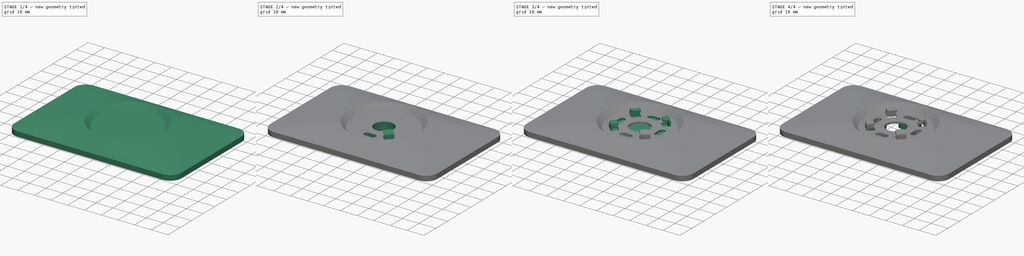
[diagram: build sequence overview — one tinted view per stage of 4, left to right]
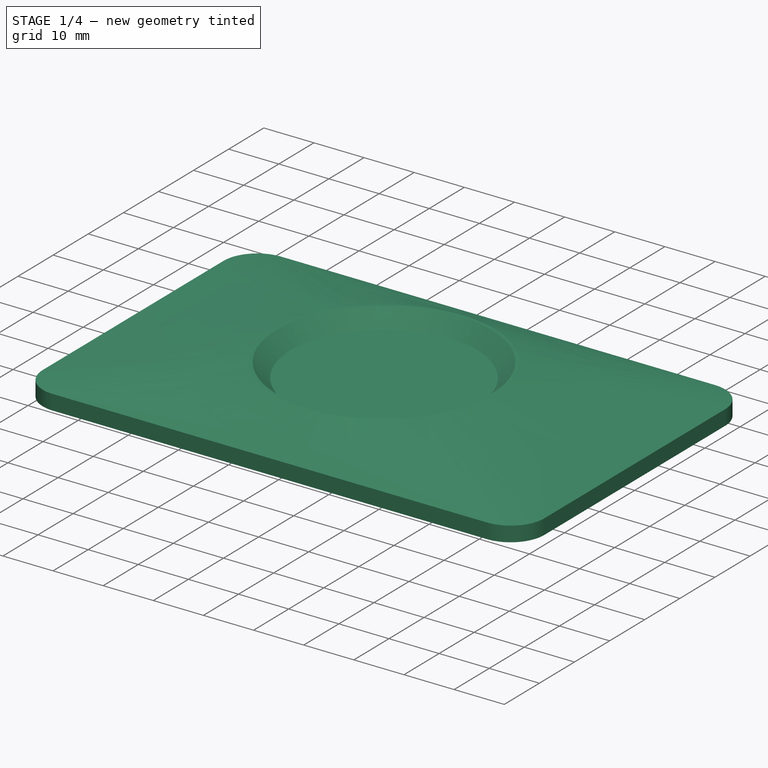
[diagram: stage 1 of 4 — iso view after this stage's code; geometry added in this stage tinted green]
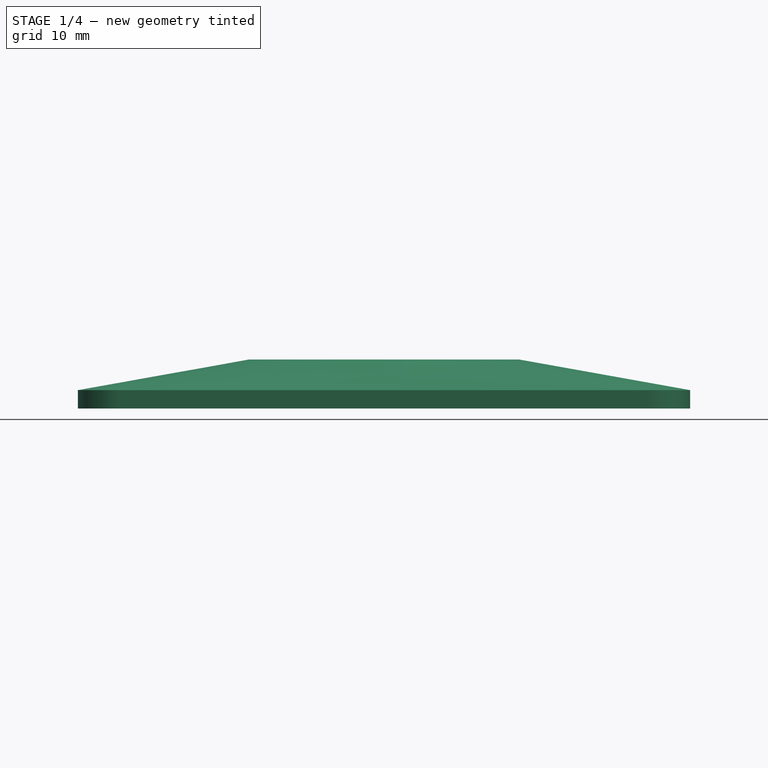
[diagram: stage 1 of 4 — front view after this stage's code; geometry added in this stage tinted green]
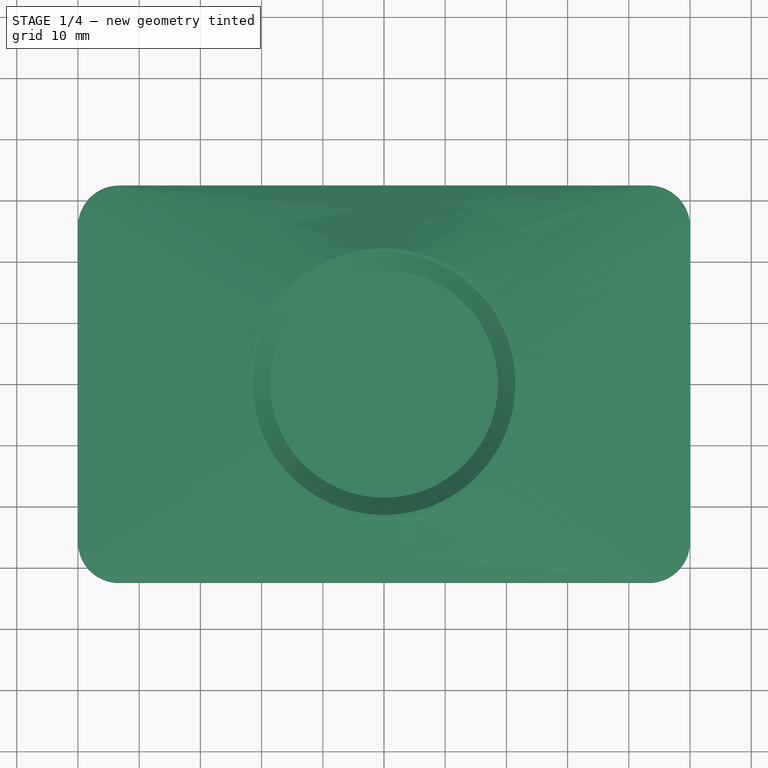
[diagram: stage 1 of 4 — top view after this stage's code; geometry added in this stage tinted green]
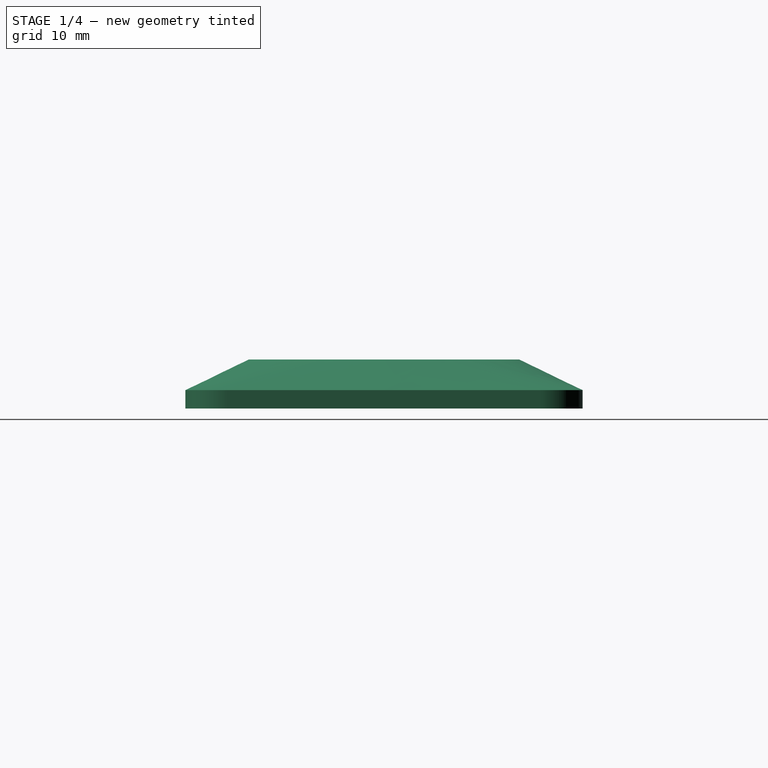
[diagram: stage 1 of 4 — right view after this stage's code; geometry added in this stage tinted green]
FCSTD DOCUMENT  (FreeCAD 1.0R39319 (Git))
Label: test
License: All rights reserved
LicenseURL: https://en.wikipedia.org/wiki/All_rights_reserved
objects: Sketcher::SketchObject×9, PartDesign::Pad×3, PartDesign::AdditiveLoft×2, PartDesign::Groove×2, PartDesign::Pocket×2, PartDesign::PolarPattern×2, PartDesign::Body×2, PartDesign::Fillet×1, PartDesign::Boolean×1
note: 56 computed .brp shape members not serialized (recipe doc carries the construction recipe); baked Part::Feature solids carry a one-line shape summary decoded from their .brp

FEATURE [Sketcher::SketchObject] Sketch
  ArcFitTolerance = 1e-06
  AttachmentSupport = -> [XY_Plane]
  FullyConstrained = false
  MakeInternals = false
  MapMode = 5
  sketch-geometry (12):
    g0: LineSegment StartX=-50.0096 StartY=25.7179 StartZ=0 EndX=-50.0096 EndY=-25.7179 EndZ=0
    g1: LineSegment StartX=-43.2767 StartY=-32.4508 StartZ=0 EndX=43.2767 EndY=-32.4508 EndZ=0
    g2: LineSegment StartX=50.0096 StartY=-25.7179 StartZ=0 EndX=50.0096 EndY=25.7179 EndZ=0
    g3: LineSegment StartX=43.2767 StartY=32.4508 StartZ=0 EndX=-43.2767 EndY=32.4508 EndZ=0
    g4: ArcOfCircle CenterX=-43.2767 CenterY=25.7179 CenterZ=0 NormalX=0 NormalY=0 NormalZ=1 AngleXU=0 Radius=6.73292 StartAngle=1.5708 EndAngle=3.14159
    g5: GeomPoint [constr] X=-50.0096 Y=32.4508 Z=0
    g6: ArcOfCircle CenterX=43.2767 CenterY=25.7179 CenterZ=0 NormalX=0 NormalY=0 NormalZ=1 AngleXU=0 Radius=6.73292 StartAngle=0 EndAngle=1.5708
    g7: GeomPoint [constr] X=50.0096 Y=32.4508 Z=0
    g8: ArcOfCircle CenterX=43.2767 CenterY=-25.7179 CenterZ=0 NormalX=0 NormalY=0 NormalZ=1 AngleXU=0 Radius=6.73292 StartAngle=4.71239 EndAngle=6.28319
    g9: GeomPoint [constr] X=50.0096 Y=-32.4508 Z=0
    g10: ArcOfCircle CenterX=-43.2767 CenterY=-25.7179 CenterZ=0 NormalX=0 NormalY=0 NormalZ=1 AngleXU=0 Radius=6.73292 StartAngle=3.14159 EndAngle=4.71239
    g11: GeomPoint [constr] X=-50.0096 Y=-32.4508 Z=0
  constraints (24):
    c: Vertical(g0)
    c: Vertical(g2)
    c: Horizontal(g1)
    c: Horizontal(g3)
    c: PointOnObject(g5,g3)
    c: PointOnObject(g5,g0)
    c: Tangent(g3,g4) = -1.5708
    c: Tangent(g0,g4) = -1.5708
    c: PointOnObject(g7,g3)
    c: PointOnObject(g7,g2)
    c: Tangent(g3,g6) = -1.5708
    c: Tangent(g2,g6) = -1.5708
    c: PointOnObject(g9,g2)
    c: PointOnObject(g9,g1)
    c: Tangent(g2,g8) = -1.5708
    c: Tangent(g1,g8) = -1.5708
    c: PointOnObject(g11,g1)
    c: PointOnObject(g11,g0)
    c: Tangent(g1,g10) = -1.5708
    c: Tangent(g0,g10) = -1.5708
    c: Equal(g10,g8)
    c: Equal(g8,g6)
    c: Equal(g6,g4)
    c: Symmetric(g8,g4,g-1)
FEATURE [PartDesign::Pad] Pad
  Direction = (0,0,1)
  Length = 3
  Length2 = 10
  Profile = -> Sketch
  ReferenceAxis = -> Sketch [N_Axis]
  Refine = true
  Suppressed = false
  Type = 0
FEATURE [Sketcher::SketchObject] Sketch002
  ArcFitTolerance = 1e-06
  AttachmentOffset = pos=(0,0,8) rot=(0,0,1;0rad)
  AttachmentSupport = -> [XY_Plane]
  FullyConstrained = false
  MakeInternals = false
  MapMode = 5
  Placement = pos=(0,0,8) rot=(0,0,1;0rad)
  sketch-geometry (1):
    g0: Circle CenterX=0 CenterY=0 CenterZ=0 NormalX=0 NormalY=0 NormalZ=1 AngleXU=0 Radius=22.0968
  constraints (1):
    c: Coincident(g0,g-1)
FEATURE [PartDesign::AdditiveLoft] AdditiveLoft
  BaseFeature = -> Pad
  Closed = false
  Profile = -> Pad [Face10]
  Refine = true
  Ruled = false
  Sections = -> [Sketch002]
  Suppressed = false
FEATURE [Sketcher::SketchObject] Sketch005
  ArcFitTolerance = 1e-06
  AttachmentSupport = -> [XZ_Plane]
  FullyConstrained = false
  MakeInternals = false
  MapMode = 5
  Placement = pos=(0,0,0) rot=(1,0,0;1.5708rad)
  sketch-geometry (5):
    g0: LineSegment StartX=0 StartY=9.53049 StartZ=0 EndX=21.7903 EndY=9.53049 EndZ=0
    g1: LineSegment StartX=21.7903 StartY=9.53049 StartZ=0 EndX=21.7903 EndY=8.33566 EndZ=0
    g2: LineSegment StartX=21.7903 StartY=8.33566 StartZ=0 EndX=18.5939 EndY=5.13926 EndZ=0
    g3: LineSegment StartX=18.5939 StartY=5.13926 StartZ=0 EndX=0 EndY=5.13926 EndZ=0
    g4: LineSegment StartX=0 StartY=5.13926 StartZ=0 EndX=0 EndY=9.53049 EndZ=0
  constraints (11):
    c: PointOnObject(g0,g-2)
    c: Horizontal(g0)
    c: Coincident(g0,g1)
    c: Vertical(g1)
    c: Coincident(g1,g2)
    c: Coincident(g2,g3)
    c: PointOnObject(g3,g-2)
    c: Horizontal(g3)
    c: Coincident(g3,g4)
    c: Coincident(g4,g0)
    c: Angle(g0,g2) = 0.785398
FEATURE [PartDesign::Groove] Groove001
  Angle = 360
  Angle2 = 60
  Axis = (0,2e-16,1)
  Base = (0,0,0)
  BaseFeature = -> AdditiveLoft
  Profile = -> Sketch005
  ReferenceAxis = -> Sketch005 [V_Axis]
  Refine = true
  Suppressed = false
  Type = 0
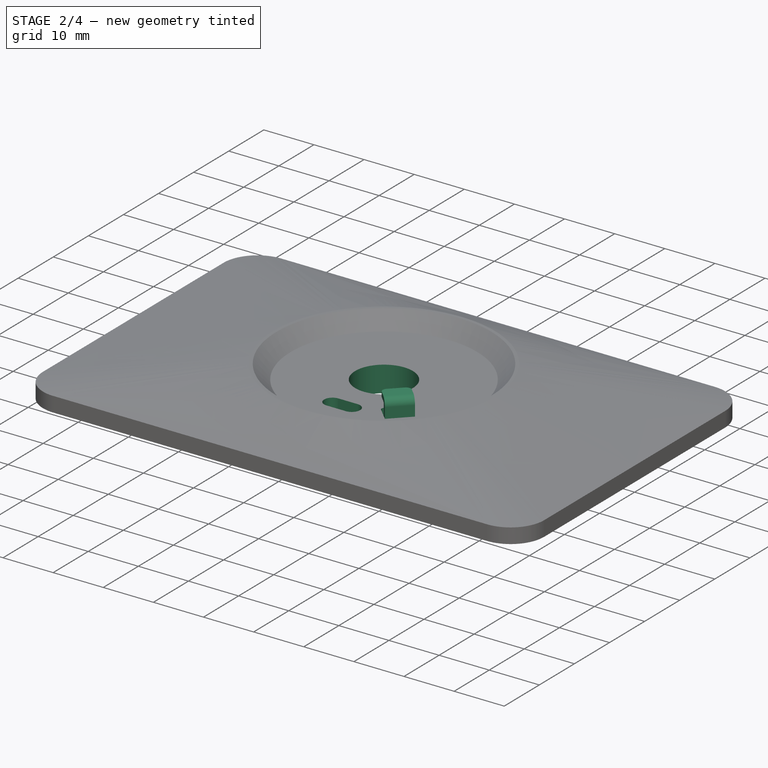
[diagram: stage 2 of 4 — iso view after this stage's code; geometry added in this stage tinted green]
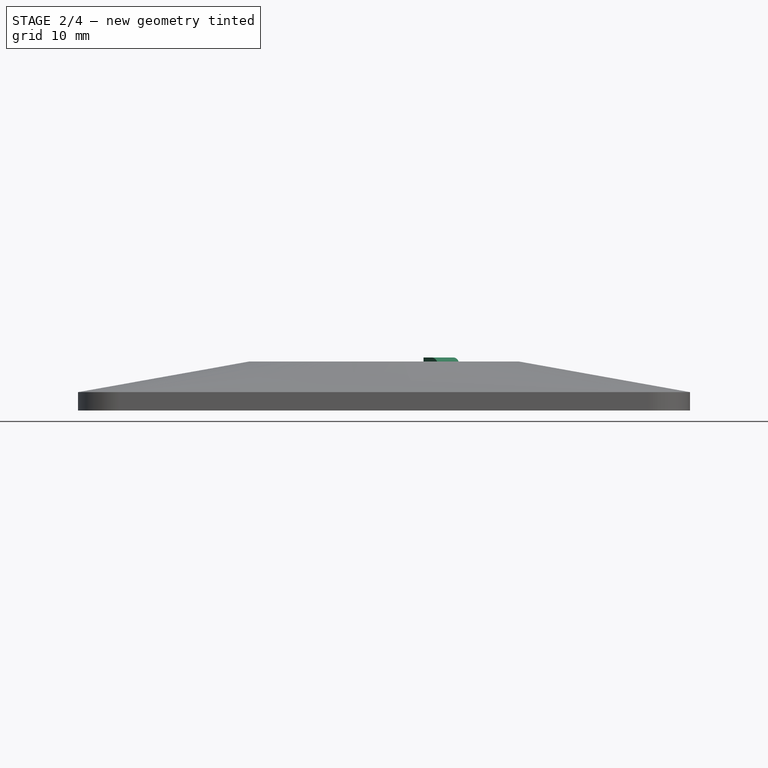
[diagram: stage 2 of 4 — front view after this stage's code; geometry added in this stage tinted green]
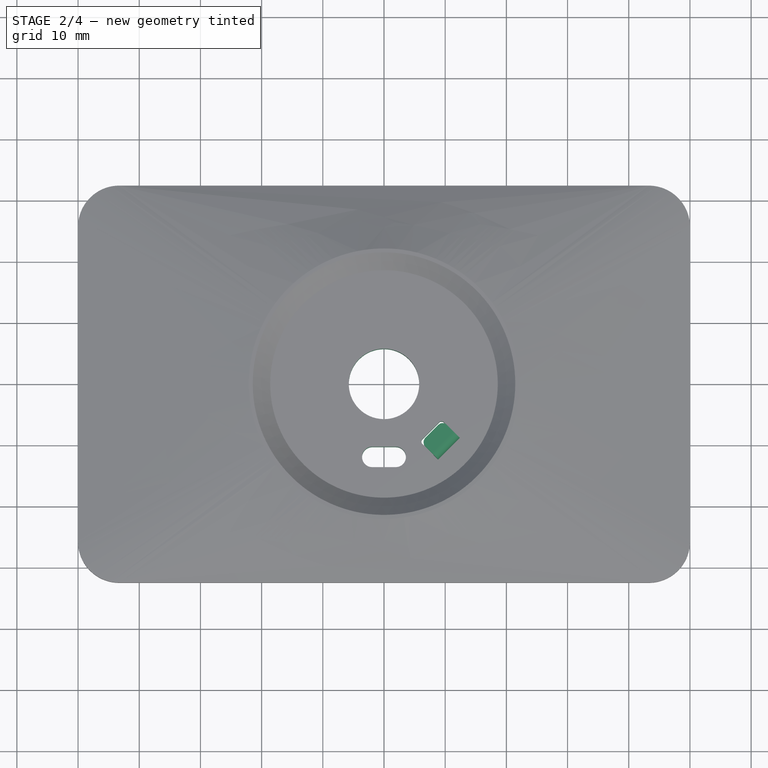
[diagram: stage 2 of 4 — top view after this stage's code; geometry added in this stage tinted green]
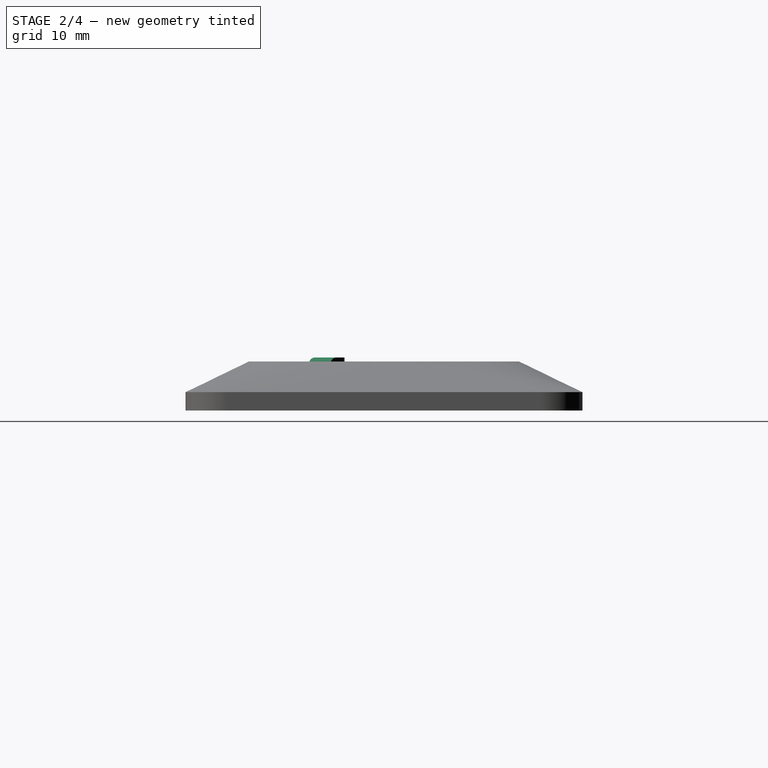
[diagram: stage 2 of 4 — right view after this stage's code; geometry added in this stage tinted green]
FEATURE [Sketcher::SketchObject] Sketch006
  ArcFitTolerance = 1e-06
  AttachmentSupport = -> [XY_Plane]
  FullyConstrained = false
  MakeInternals = false
  MapMode = 5
  sketch-geometry (12):
    g0: ArcOfCircle CenterX=-1.92104 CenterY=-11.9345 CenterZ=0 NormalX=0 NormalY=0 NormalZ=1 AngleXU=0 Radius=1.6638 StartAngle=1.5708 EndAngle=4.71239
    g1: ArcOfCircle CenterX=1.92104 CenterY=-11.9345 CenterZ=0 NormalX=0 NormalY=0 NormalZ=1 AngleXU=0 Radius=1.6638 StartAngle=4.71239 EndAngle=7.85398
    g2: LineSegment StartX=-1.92104 StartY=-10.2707 StartZ=0 EndX=1.92104 EndY=-10.2707 EndZ=0
    g3: LineSegment StartX=-1.92104 StartY=-13.5983 StartZ=0 EndX=1.92104 EndY=-13.5983 EndZ=0
    g4: LineSegment [constr] StartX=0 StartY=0 StartZ=0 EndX=9.89949 EndY=-9.89949 EndZ=0
    g5: LineSegment StartX=8.13173 StartY=-11.6673 StartZ=0 EndX=11.6673 EndY=-8.13173 EndZ=0
    g6: LineSegment StartX=11.6673 StartY=-8.13173 StartZ=0 EndX=9.80722 EndY=-6.27169 EndZ=0
    g7: ArcOfCircle CenterX=9.40857 CenterY=-6.67034 CenterZ=0 NormalX=0 NormalY=0 NormalZ=1 AngleXU=0 Radius=0.563781 StartAngle=0.785398 EndAngle=2.35619
    g8: LineSegment StartX=9.00991 StartY=-6.27169 StartZ=0 EndX=6.27169 EndY=-9.00991 EndZ=0
    g9: ArcOfCircle CenterX=6.67034 CenterY=-9.40857 CenterZ=0 NormalX=0 NormalY=0 NormalZ=1 AngleXU=0 Radius=0.563781 StartAngle=2.35619 EndAngle=3.92699
    g10: LineSegment StartX=6.27169 StartY=-9.80722 StartZ=0 EndX=8.13173 EndY=-11.6673 EndZ=0
    g11: Circle CenterX=0 CenterY=0 CenterZ=0 NormalX=0 NormalY=0 NormalZ=1 AngleXU=0 Radius=5.75241
  constraints (23):
    c: Tangent(g0,g2) = 1.5708
    c: Tangent(g0,g3) = -1.5708
    c: Tangent(g1,g2) = 1.5708
    c: Tangent(g1,g3) = -1.5708
    c: Equal(g0,g1)
    c: Symmetric(g1,g0,g-2)
    c: Coincident(g-1,g4)
    c: Angle(g4,g-1) = 0.785398
    c: Coincident(g5,g6)
    c: Tangent(g6,g7) = -1.5708
    c: Tangent(g8,g9) = -1.5708
    c: Coincident(g10,g5)
    c: Equal(g6,g10)
    c: Perpendicular(g5,g6)
    c: Perpendicular(g5,g10)
    c: Equal(g7,g9)
    c: Perpendicular(g4,g5)
    c: Tangent(g7,g8) = -1.5708
    c: Tangent(g9,g10) = -1.5708
    c: Symmetric(g5,g5,g4)
    c: Distance(g5) = 5
    c: Distance(g4) = 14
    c: Coincident(g11,g4)
FEATURE [PartDesign::Pocket] Pocket
  BaseFeature = -> Groove001
  Direction = (0,0,-1)
  Length = 5
  Length2 = 5
  Profile = -> Sketch006
  ReferenceAxis = -> Sketch006 [N_Axis]
  Refine = true
  Reversed = true
  Suppressed = false
  Type = 1
FEATURE [Sketcher::SketchObject] Sketch007
  ArcFitTolerance = 1e-06
  AttachmentOffset = pos=(0,0,0) rot=(0,1,0;-0.785398rad)
  AttachmentSupport = -> [XZ_Plane]
  FullyConstrained = false
  MakeInternals = false
  MapMode = 5
  Placement = pos=(0,0,0) rot=(-0.862856,0.357407,0.357407;4.56541rad)
  sketch-geometry (10):
    g0: LineSegment StartX=14 StartY=4.96978 StartZ=0 EndX=14 EndY=7.20478 EndZ=0
    g1: LineSegment StartX=13.5425 StartY=7.66223 StartZ=0 EndX=11.0559 EndY=7.66223 EndZ=0
    g2: LineSegment StartX=11.0559 StartY=7.66223 StartZ=0 EndX=11.0559 EndY=8.66223 EndZ=0
    g3: LineSegment StartX=11.0559 StartY=8.66223 StartZ=0 EndX=13.5425 EndY=8.66223 EndZ=0
    g4: LineSegment StartX=15 StartY=7.20478 StartZ=0 EndX=15 EndY=4.96978 EndZ=0
    g5: LineSegment StartX=15 StartY=4.96978 StartZ=0 EndX=14 EndY=4.96978 EndZ=0
    g6: ArcOfCircle CenterX=13.5425 CenterY=7.20478 CenterZ=0 NormalX=0 NormalY=0 NormalZ=1 AngleXU=0 Radius=0.45745 StartAngle=0 EndAngle=1.5708
    g7: GeomPoint [constr] X=14 Y=7.66223 Z=0
    g8: ArcOfCircle CenterX=13.5425 CenterY=7.20478 CenterZ=0 NormalX=0 NormalY=0 NormalZ=1 AngleXU=0 Radius=1.45745 StartAngle=0 EndAngle=1.5708
    g9: GeomPoint [constr] X=15 Y=8.66223 Z=0
  constraints (21):
    c: Vertical(g0)
    c: Horizontal(g1)
    c: Coincident(g1,g2)
    c: Vertical(g2)
    c: Coincident(g2,g3)
    c: Horizontal(g3)
    c: Vertical(g4)
    c: Coincident(g4,g5)
    c: Coincident(g5,g0)
    c: Horizontal(g5)
    c: DistanceX(g0) = 14
    c: PointOnObject(g7,g0)
    c: PointOnObject(g7,g1)
    c: Tangent(g0,g6) = -1.5708
    c: Tangent(g1,g6) = -1.5708
    c: PointOnObject(g9,g3)
    c: PointOnObject(g9,g4)
    c: Tangent(g3,g8) = 1.5708
    c: Tangent(g4,g8) = 1.5708
    c: Coincident(g6,g8)
    c: DistanceX(g5,g5) = 1
FEATURE [PartDesign::Pad] Pad002
  BaseFeature = -> Pocket
  Direction = (-0.707107,-0.707107,1e-16)
  Length = 5
  Length2 = 10
  Midplane = true
  Profile = -> Sketch007
  ReferenceAxis = -> Sketch007 [N_Axis]
  Refine = true
  Suppressed = false
  Type = 0
FEATURE [PartDesign::Fillet] Fillet
  Base = -> Pad002 [Edge84,Edge93]
  BaseFeature = -> Pad002
  Radius = 1
  Refine = true
  SupportTransform = false
  Suppressed = false
  UseAllEdges = false
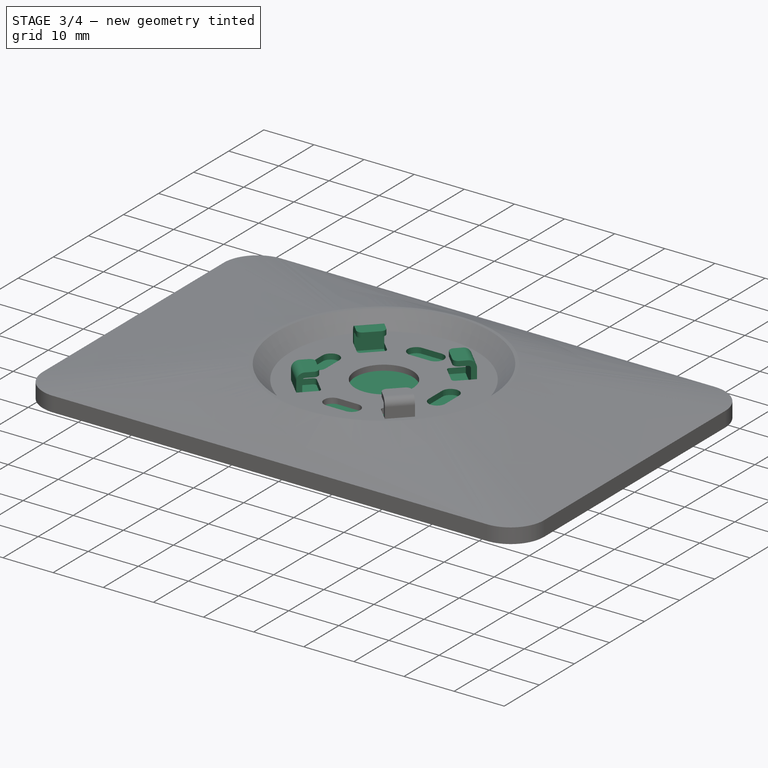
[diagram: stage 3 of 4 — iso view after this stage's code; geometry added in this stage tinted green]
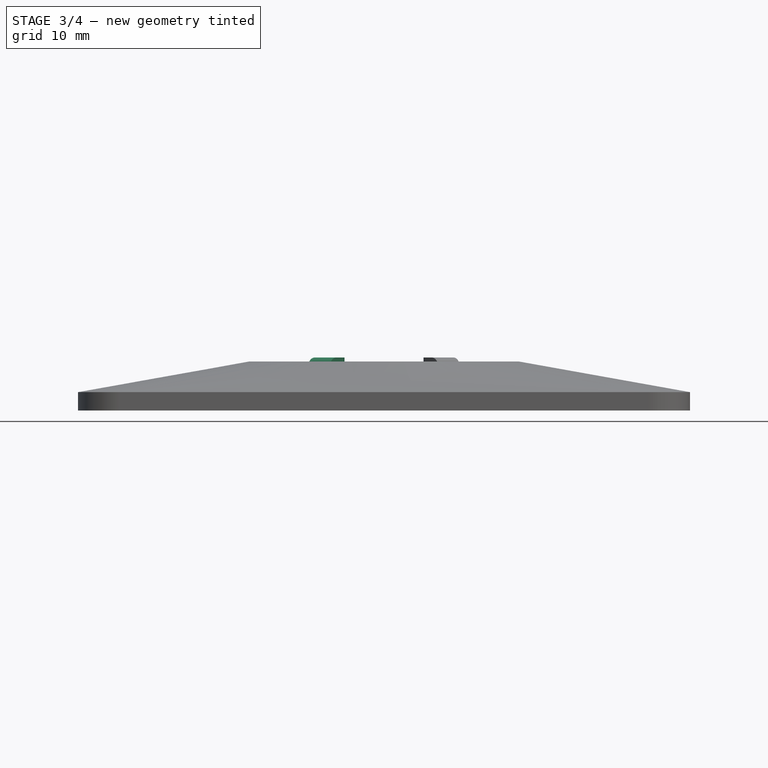
[diagram: stage 3 of 4 — front view after this stage's code; geometry added in this stage tinted green]
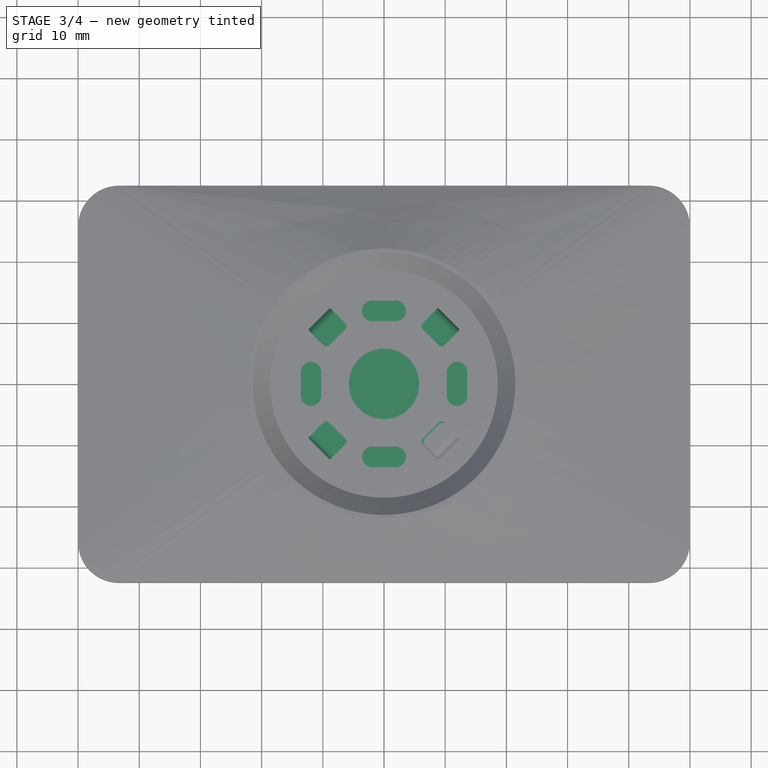
[diagram: stage 3 of 4 — top view after this stage's code; geometry added in this stage tinted green]
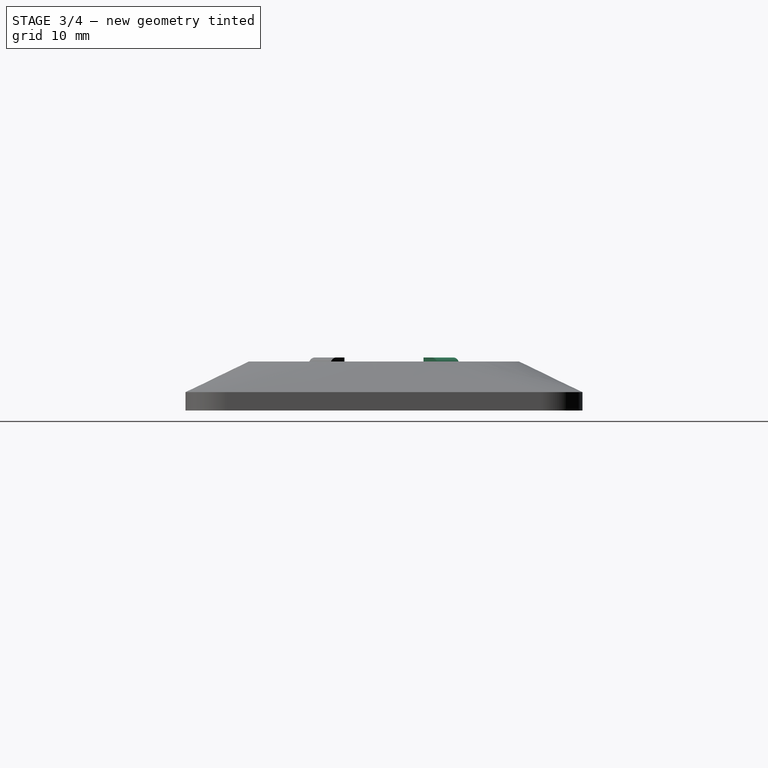
[diagram: stage 3 of 4 — right view after this stage's code; geometry added in this stage tinted green]
FEATURE [Sketcher::SketchObject] Sketch001
  ArcFitTolerance = 1e-06
  AttachmentSupport = -> [XY_Plane001]
  FullyConstrained = false
  MakeInternals = false
  MapMode = 5
  sketch-geometry (12):
    g0: LineSegment StartX=-47.4194 StartY=25.557 StartZ=0 EndX=-47.4194 EndY=-25.557 EndZ=0
    g1: LineSegment StartX=-42.8552 StartY=-30.1213 StartZ=0 EndX=42.8552 EndY=-30.1213 EndZ=0
    g2: LineSegment StartX=47.4194 StartY=-25.557 StartZ=0 EndX=47.4194 EndY=25.557 EndZ=0
    g3: LineSegment StartX=42.8552 StartY=30.1213 StartZ=0 EndX=-42.8552 EndY=30.1213 EndZ=0
    g4: ArcOfCircle CenterX=42.8552 CenterY=25.557 CenterZ=0 NormalX=0 NormalY=0 NormalZ=1 AngleXU=0 Radius=4.56426 StartAngle=1e-16 EndAngle=1.5708
    g5: GeomPoint [constr] X=47.4194 Y=30.1213 Z=0
    g6: ArcOfCircle CenterX=42.8552 CenterY=-25.557 CenterZ=0 NormalX=0 NormalY=0 NormalZ=1 AngleXU=0 Radius=4.56426 StartAngle=4.71239 EndAngle=6.28319
    g7: GeomPoint [constr] X=47.4194 Y=-30.1213 Z=0
    g8: ArcOfCircle CenterX=-42.8552 CenterY=-25.557 CenterZ=0 NormalX=0 NormalY=0 NormalZ=1 AngleXU=0 Radius=4.56426 StartAngle=3.14159 EndAngle=4.71239
    g9: GeomPoint [constr] X=-47.4194 Y=-30.1213 Z=0
    g10: ArcOfCircle CenterX=-42.8552 CenterY=25.557 CenterZ=0 NormalX=0 NormalY=0 NormalZ=1 AngleXU=0 Radius=4.56426 StartAngle=1.5708 EndAngle=3.14159
    g11: GeomPoint [constr] X=-47.4194 Y=30.1213 Z=0
  constraints (24):
    c: Vertical(g0)
    c: Vertical(g2)
    c: Horizontal(g1)
    c: Horizontal(g3)
    c: PointOnObject(g5,g2)
    c: PointOnObject(g5,g3)
    c: Tangent(g2,g4) = -1.5708
    c: Tangent(g3,g4) = -1.5708
    c: PointOnObject(g7,g2)
    c: PointOnObject(g7,g1)
    c: Tangent(g2,g6) = -1.5708
    c: Tangent(g1,g6) = -1.5708
    c: PointOnObject(g9,g1)
    c: PointOnObject(g9,g0)
    c: Tangent(g1,g8) = -1.5708
    c: Tangent(g0,g8) = -1.5708
    c: PointOnObject(g11,g0)
    c: PointOnObject(g11,g3)
    c: Tangent(g0,g10) = -1.5708
    c: Tangent(g3,g10) = -1.5708
    c: Equal(g10,g4)
    c: Equal(g4,g6)
    c: Equal(g6,g8)
    c: Symmetric(g6,g10,g-1)
FEATURE [PartDesign::Pad] Pad001
  Direction = (0,0,1)
  Length = 2.5
  Length2 = 10
  Profile = -> Sketch001
  ReferenceAxis = -> Sketch001 [N_Axis]
  Refine = true
  Suppressed = false
  Type = 0
FEATURE [Sketcher::SketchObject] Sketch003
  ArcFitTolerance = 1e-06
  AttachmentOffset = pos=(0,0,6.5) rot=(0,0,1;0rad)
  AttachmentSupport = -> [XY_Plane001]
  FullyConstrained = false
  MakeInternals = false
  MapMode = 5
  Placement = pos=(0,0,6.5) rot=(0,0,1;0rad)
  sketch-geometry (1):
    g0: Circle CenterX=0 CenterY=0 CenterZ=0 NormalX=0 NormalY=0 NormalZ=1 AngleXU=0 Radius=22.1508
  constraints (1):
    c: Coincident(g0,g-1)
FEATURE [PartDesign::AdditiveLoft] AdditiveLoft001
  BaseFeature = -> Pad001
  Closed = false
  Profile = -> Pad001 [Face10]
  Refine = true
  Ruled = false
  Sections = -> [Sketch003]
  Suppressed = false
FEATURE [Sketcher::SketchObject] Sketch004
  ArcFitTolerance = 1e-06
  AttachmentSupport = -> [XZ_Plane001]
  FullyConstrained = false
  MakeInternals = false
  MapMode = 5
  Placement = pos=(0,0,0) rot=(1,0,0;1.5708rad)
  sketch-geometry (5):
    g0: LineSegment StartX=0 StartY=9.15969 StartZ=0 EndX=21.8878 EndY=9.15969 EndZ=0
    g1: LineSegment StartX=21.8878 StartY=9.15969 StartZ=0 EndX=21.8878 EndY=6.90193 EndZ=0
    g2: LineSegment StartX=21.8878 StartY=6.90193 StartZ=0 EndX=19.0264 EndY=4.04054 EndZ=0
    g3: LineSegment StartX=19.0264 StartY=4.04054 StartZ=0 EndX=0 EndY=4.04054 EndZ=0
    g4: LineSegment StartX=0 StartY=4.04054 StartZ=0 EndX=0 EndY=9.15969 EndZ=0
  constraints (11):
    c: PointOnObject(g0,g-2)
    c: Horizontal(g0)
    c: Coincident(g0,g1)
    c: Vertical(g1)
    c: Coincident(g1,g2)
    c: Coincident(g2,g3)
    c: PointOnObject(g3,g-2)
    c: Horizontal(g3)
    c: Coincident(g3,g4)
    c: Coincident(g4,g0)
    c: Angle(g0,g2) = 0.785398
FEATURE [PartDesign::Groove] Groove
  Angle = 360
  Angle2 = 60
  Axis = (0,2e-16,1)
  Base = (0,0,0)
  BaseFeature = -> AdditiveLoft001
  Profile = -> Sketch004
  ReferenceAxis = -> Sketch004 [V_Axis]
  Refine = true
  Suppressed = false
  Type = 0
FEATURE [PartDesign::Body] Body001
  AllowCompound = false
  Group = -> [Sketch001,Pad001,Sketch003,AdditiveLoft001,Sketch004,Groove,Sketch008,Pocket001,PolarPattern]
  Origin = -> Origin001
  Tip = -> PolarPattern
FEATURE [PartDesign::PolarPattern] PolarPattern001
  Angle = 360
  Axis = -> Sketch006 [N_Axis]
  BaseFeature = -> Fillet
  Mode = 0
  Occurrences = 4
  Offset = 120
  Originals = -> [Pocket,Pad002,Fillet]
  Refine = true
  Suppressed = false
  TransformMode = 0
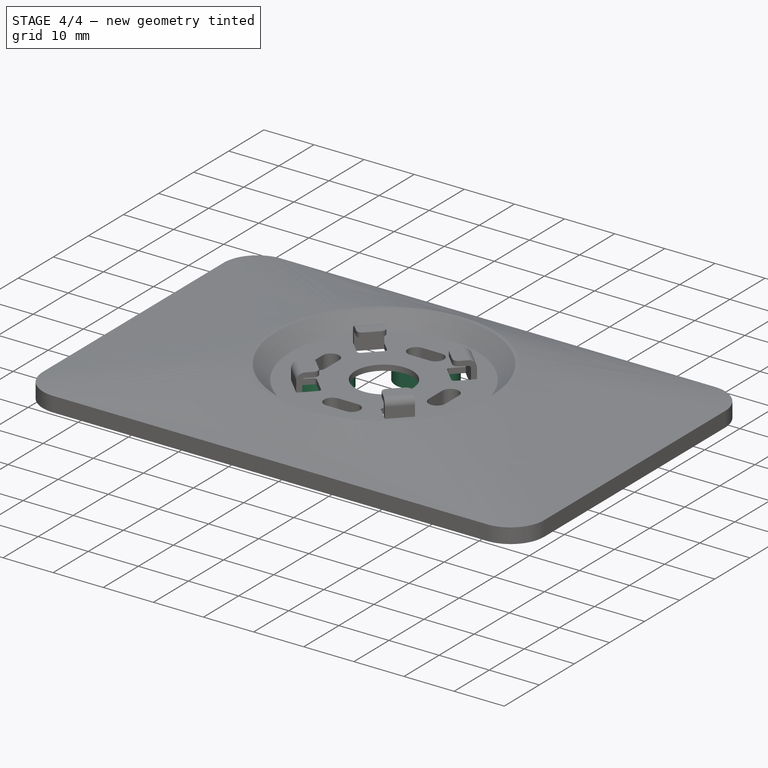
[diagram: stage 4 of 4 — iso view after this stage's code; geometry added in this stage tinted green]
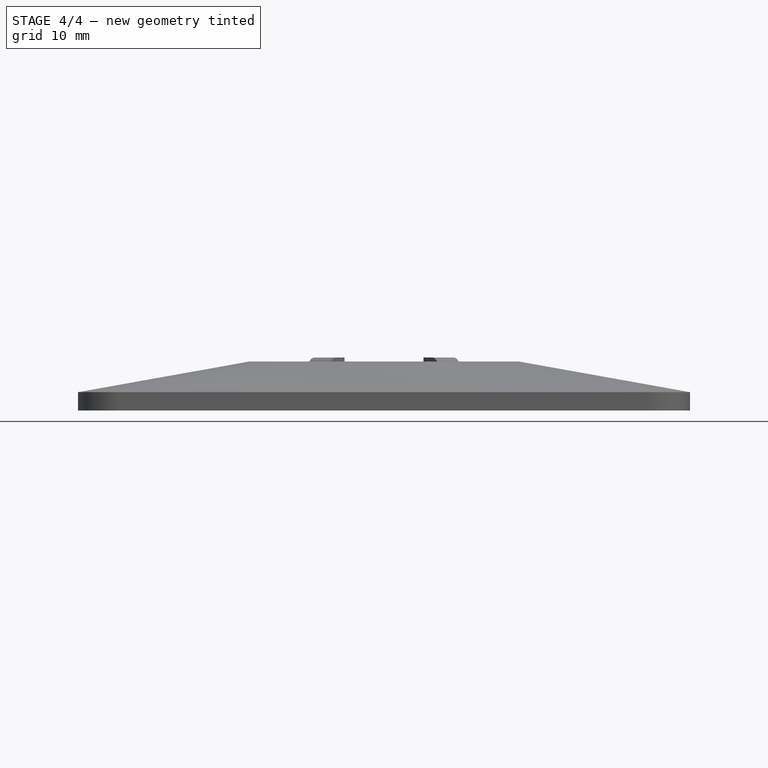
[diagram: stage 4 of 4 — front view after this stage's code; geometry added in this stage tinted green]
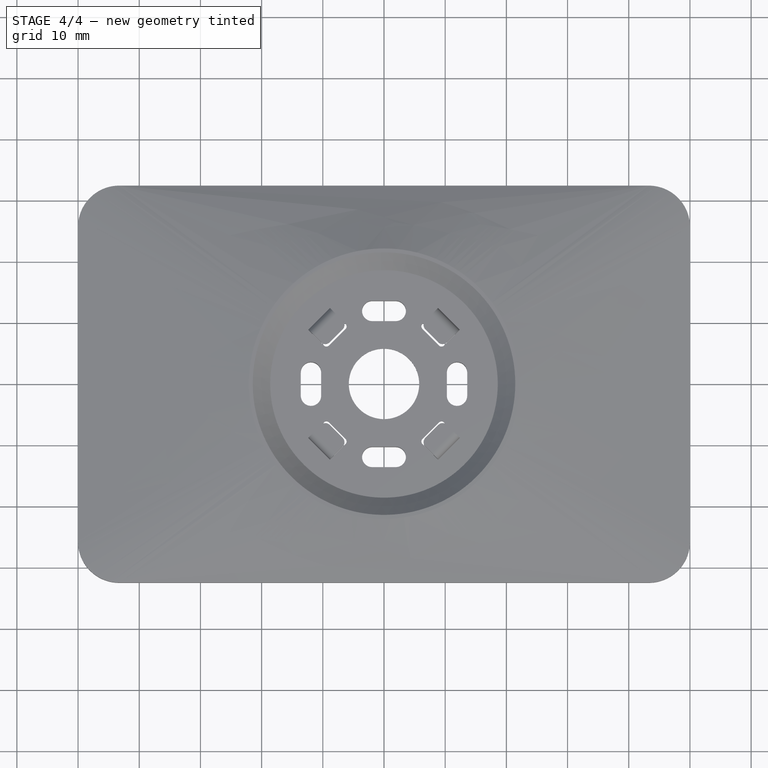
[diagram: stage 4 of 4 — top view after this stage's code; geometry added in this stage tinted green]
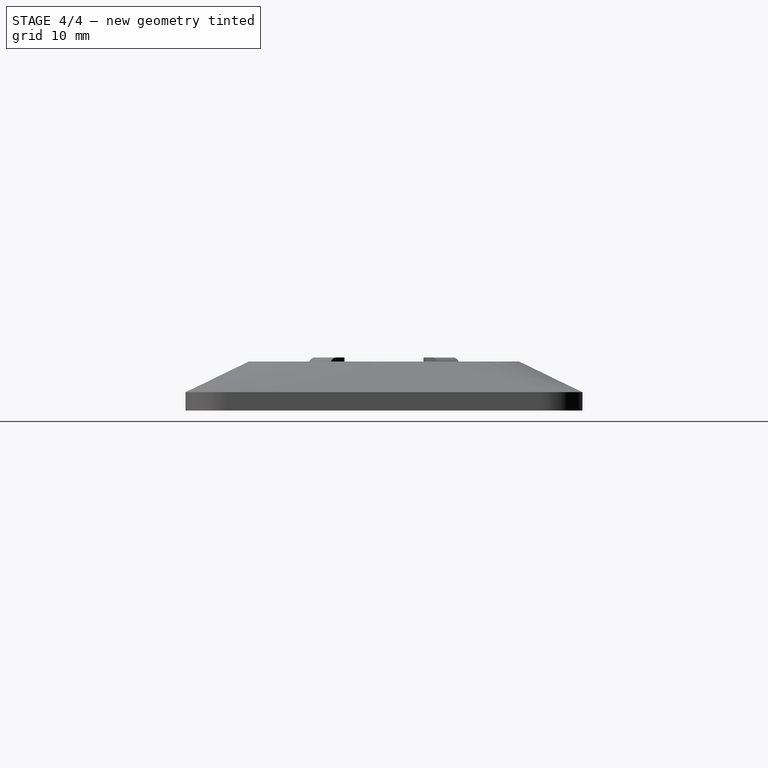
[diagram: stage 4 of 4 — right view after this stage's code; geometry added in this stage tinted green]
FEATURE [Sketcher::SketchObject] Sketch008
  ArcFitTolerance = 1e-06
  AttachmentSupport = -> [XY_Plane001]
  FullyConstrained = false
  MakeInternals = false
  MapMode = 5
  sketch-geometry (4):
    g0: ArcOfCircle CenterX=-2.22724 CenterY=-11.9529 CenterZ=0 NormalX=0 NormalY=0 NormalZ=1 AngleXU=0 Radius=3.85546 StartAngle=1.5708 EndAngle=4.71239
    g1: ArcOfCircle CenterX=2.22724 CenterY=-11.9529 CenterZ=0 NormalX=0 NormalY=0 NormalZ=1 AngleXU=0 Radius=3.85546 StartAngle=4.71239 EndAngle=7.85398
    g2: LineSegment StartX=-2.22724 StartY=-8.09745 StartZ=0 EndX=2.22724 EndY=-8.09745 EndZ=0
    g3: LineSegment StartX=-2.22724 StartY=-15.8084 StartZ=0 EndX=2.22724 EndY=-15.8084 EndZ=0
  constraints (6):
    c: Tangent(g0,g2) = 1.5708
    c: Tangent(g0,g3) = -1.5708
    c: Tangent(g1,g2) = 1.5708
    c: Tangent(g1,g3) = -1.5708
    c: Equal(g0,g1)
    c: Symmetric(g1,g0,g-2)
FEATURE [PartDesign::Pocket] Pocket001
  BaseFeature = -> Groove
  Direction = (0,0,-1)
  Length = 5
  Length2 = 5
  Profile = -> Sketch008
  ReferenceAxis = -> Sketch008 [N_Axis]
  Refine = true
  Reversed = true
  Suppressed = false
  Type = 1
FEATURE [PartDesign::PolarPattern] PolarPattern
  Angle = 360
  Axis = -> Sketch008 [N_Axis]
  BaseFeature = -> Pocket001
  Mode = 0
  Occurrences = 4
  Offset = 120
  Originals = -> [Pocket001]
  Refine = true
  Suppressed = false
  TransformMode = 0
FEATURE [PartDesign::Boolean] Boolean
  BaseFeature = -> PolarPattern001
  Group = -> [Body001]
  Refine = true
  Suppressed = false
  Type = 1
  UsePlacement = true
FEATURE [PartDesign::Body] Body
  AllowCompound = false
  Group = -> [Sketch,Pad,Sketch002,AdditiveLoft,Sketch005,Groove001,Sketch006,Pocket,Sketch007,Pad002,Fillet,PolarPattern001,Boolean]
  Origin = -> Origin
  Tip = -> Boolean
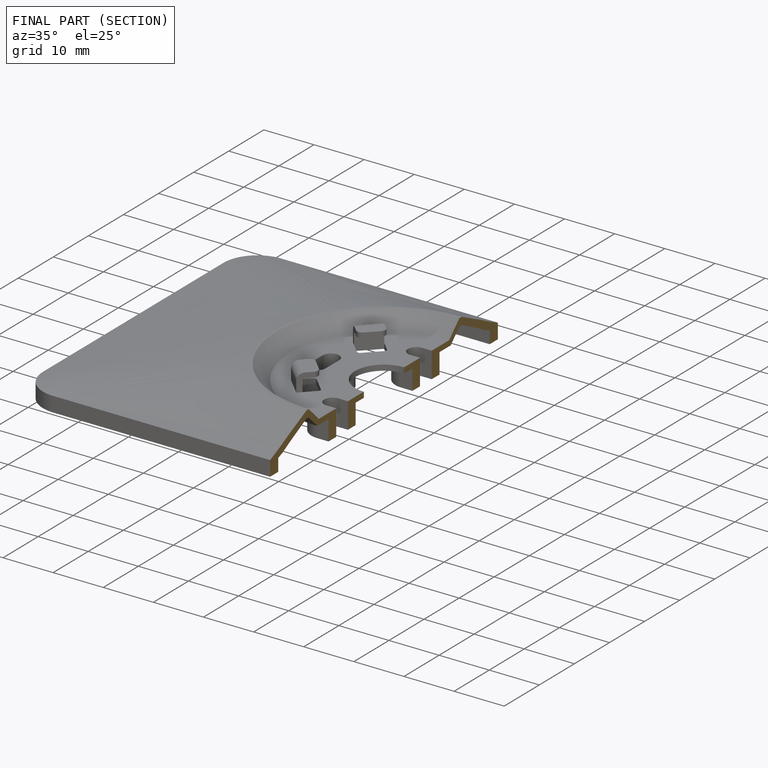
[diagram: finished part — half-section view (interior)]
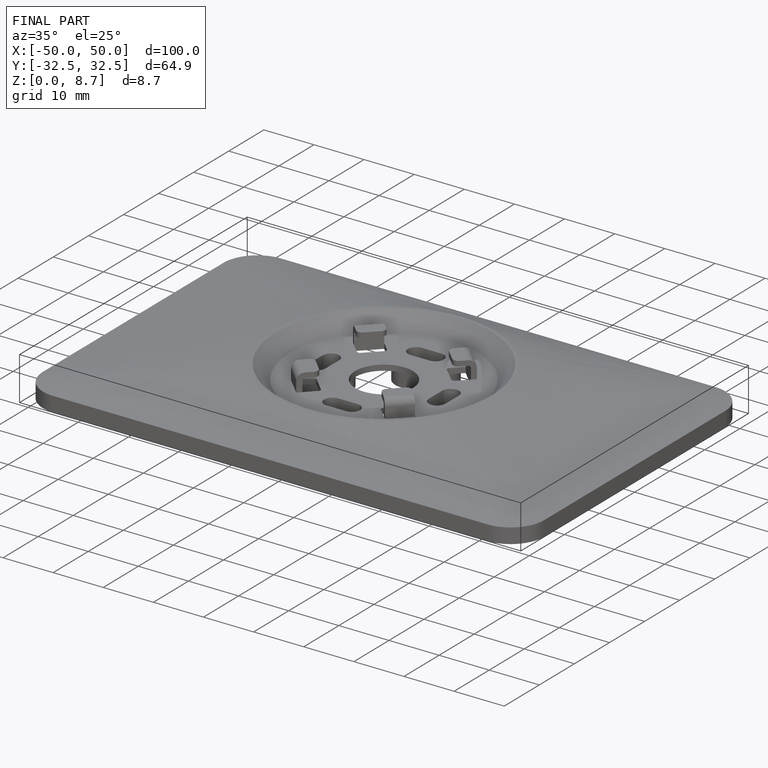
[diagram: finished part — iso view with bounding-box wireframe]
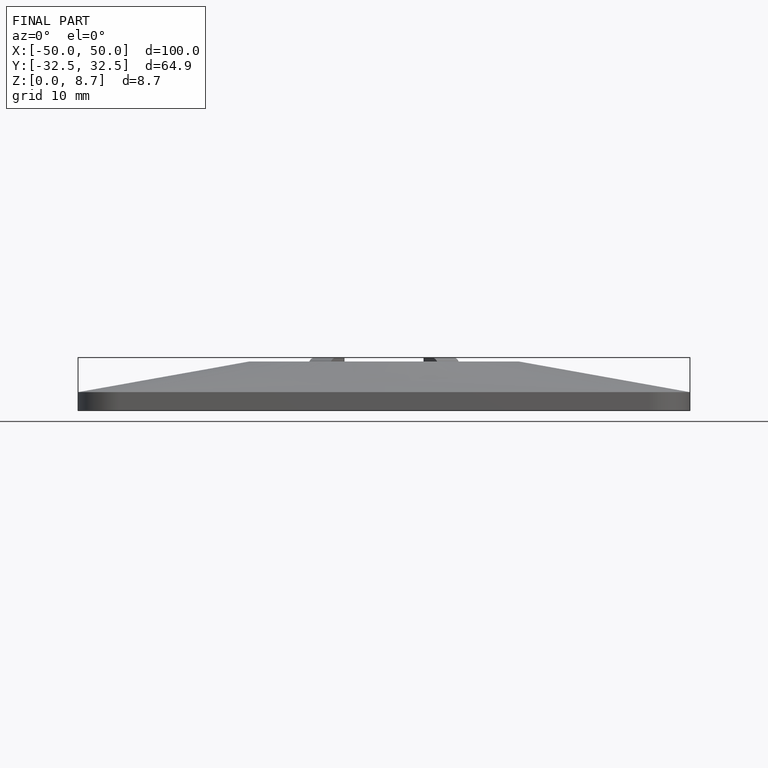
[diagram: finished part — front view with bounding-box wireframe]
